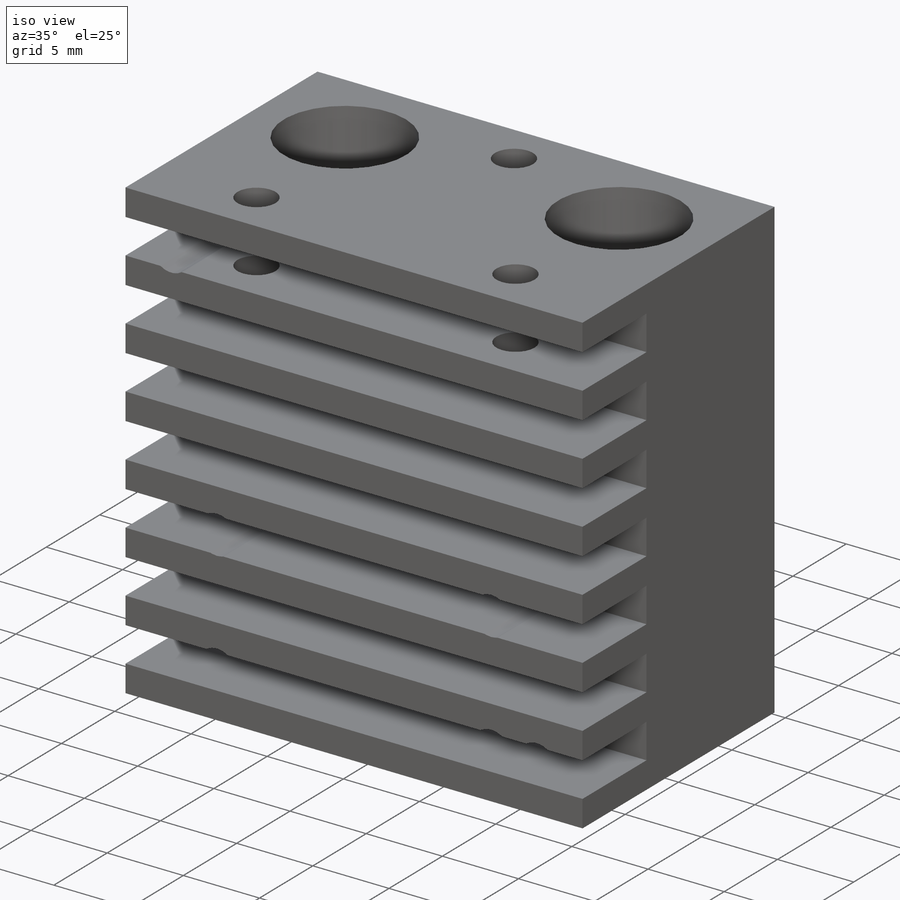
[diagram: iso view]
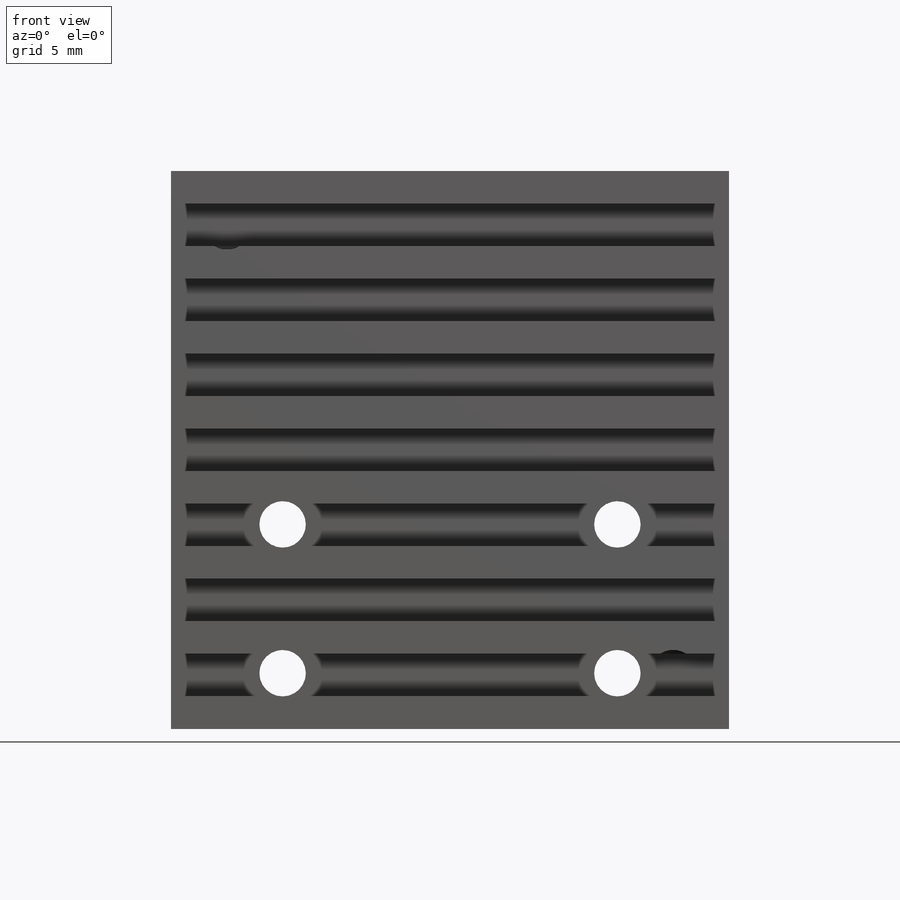
[diagram: front view]
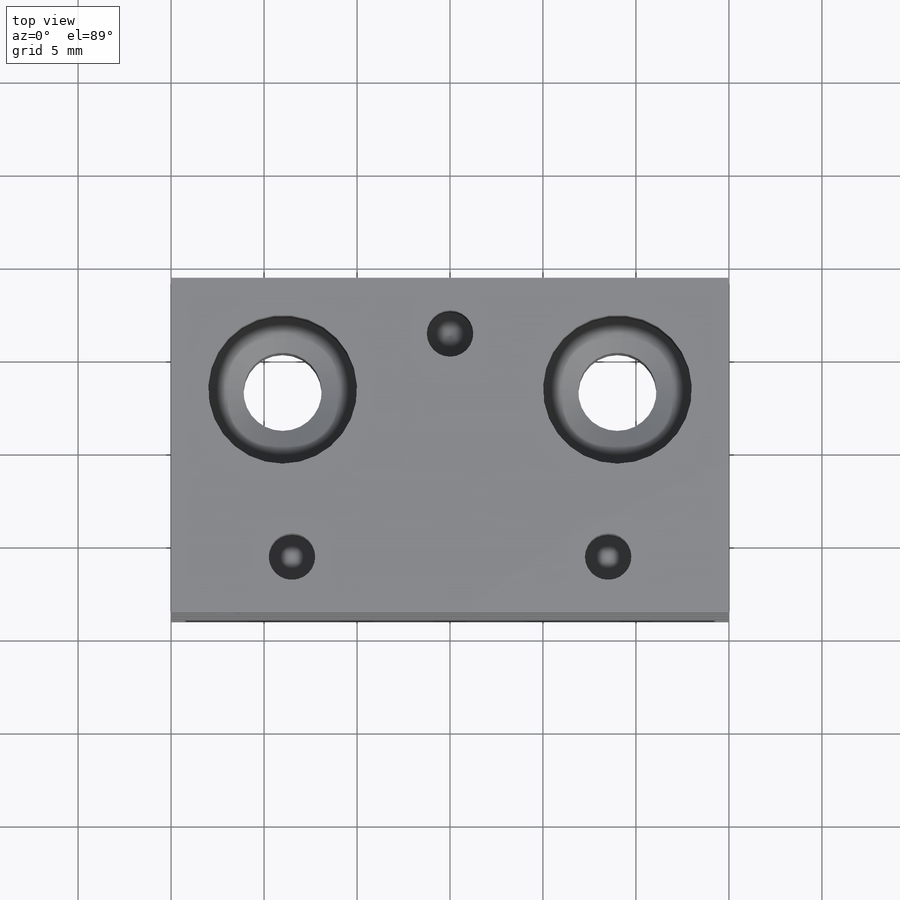
[diagram: top view]
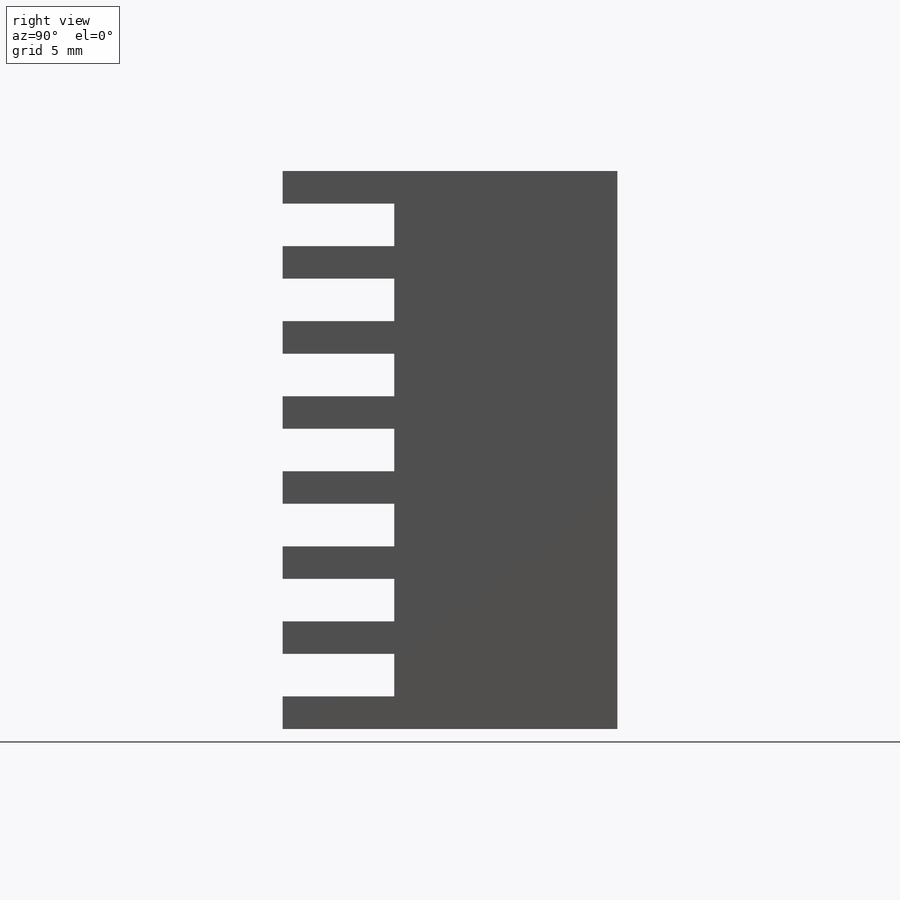
[diagram: right view]
SOLIDWORKS PART (.sldprt)
format: sldprt  version: not decoded by parser v0  size: 670,208 bytes
history: native  units: mm
features: sketch x15, thread x10, hole x7, material x1, extrude x1 (+13 scaffold rows collapsed)
feature tree (47):
  scaffold x13  (default folders/planes/origin — collapsed)
  material  "1060 Alloy"
  sketch  "Sketch1"  dims[c1.D1=~89.231829mm c1.D2=~41.575687mm c2.D1=30.0mm c2.D2=18.0mm c2.D3=6.0mm c2.D4=1.75mm]
  extrude  "Boss-Extrude1"  Depth=30mm
  hole  "Tap Drill for M3x0.5 Tap2"  Diameter=2.5mm Depth=5mm
  sketch  "Sketch22"  dims[D1=3.0mm D2=3.0mm D3=3.0mm D4=3.0mm]
  sketch  "Sketch21"  dims[hole-wizard template sketch: 50 standard entries collapsed; hole parameters above]
  hole  "Ø7.0 (7) Diameter Hole1"  Diameter=7mm Depth=14mm
  sketch  "Sketch15"  dims[D1=18.0mm D2=6.0mm]
  sketch  "Sketch14"  dims[hole-wizard template sketch: 46 standard entries collapsed; hole parameters kept: c15.Hole Dia.=7.0mm c15.Hole Depth=14.0mm c15.D3=~14.816244mm c15.Drill Angle=118.0deg]
  hole  "Ø8.0 (8) Diameter Hole1"  Diameter=8mm Depth=6.5mm
  sketch  "Sketch17"
  sketch  "Sketch16"  dims[hole-wizard template sketch: 46 standard entries collapsed; hole parameters kept: c15.Hole Dia.=8.0mm c15.Hole Depth=6.5mm c15.D3=~14.816244mm c15.Drill Angle=118.0deg]
  hole  "Ø4.2 (4.2) Diameter Hole1"  Diameter=4.2mm Depth=30mm
  sketch  "Sketch19"
  sketch  "Sketch20"  dims[hole-wizard template sketch: 60 standard entries collapsed; hole parameters kept: c18.Thru Hole Depth=30.0mm]
  hole  "M3x0.5 Tapped Hole1"  Diameter=2.5mm Depth=18mm
  sketch  "Sketch9"  dims[c1.D1=18.0mm c1.D2=10.0mm c1.D3=3.0mm c1.D4=15.0mm c1.D5=10.0mm c1.D6=1.0mm c2.D2=11.0mm]
  sketch  "Sketch8"  dims[hole-wizard template sketch: 60 standard entries collapsed; hole parameters kept: c18.Thru Tap Drill Depth=18.0mm]
  thread  "Hole Thread4"  Diameter=3mm  [1 undecoded]
  thread  "Hole Thread5"  Diameter=3mm  [1 undecoded]
  thread  "Hole Thread6"  Diameter=3mm  [1 undecoded]
  thread  "Hole Thread7"  Diameter=3mm  [1 undecoded]
  hole  "M3x0.5 Tapped Hole2"  Diameter=2.5mm Depth=6mm
  sketch  "Sketch11"  dims[c1.D1=20.0mm c1.D2=3.0mm c2.D1=6.5mm c2.D3=3.0mm c2.D4=17.0mm]
  sketch  "Sketch10"  dims[hole-wizard template sketch: 50 standard entries collapsed; hole parameters above]
  thread  "Hole Thread8"  Diameter=5.785714mm  [1 undecoded]
  thread  "Hole Thread9"  Diameter=5.785714mm  [1 undecoded]
  thread  "Hole Thread13"  Diameter=6mm  [1 undecoded]
  hole  "M3x0.5 Tapped Hole3"  Diameter=2.5mm Depth=8mm
  sketch  "Sketch13"  dims[D1=10.0mm D2=9.0mm D3=10.0mm D4=19.5mm]
  sketch  "Sketch12"  dims[hole-wizard template sketch: 50 standard entries collapsed; hole parameters above]
  thread  "Hole Thread10"  Diameter=6mm  [1 undecoded]
  thread  "Hole Thread11"  Diameter=6mm  [1 undecoded]
  thread  "Hole Thread12"  Diameter=6mm  [1 undecoded]
decode coverage: 31 of 33 modeling features carry decoded parameters
note: ~ marks probable driven/reference dimensions
note: 10 parameter values undecoded
summary: Diameter pulled from absorbed wizard sketch
note: suppression state not decoded; provenance and decode notes live in map.json
